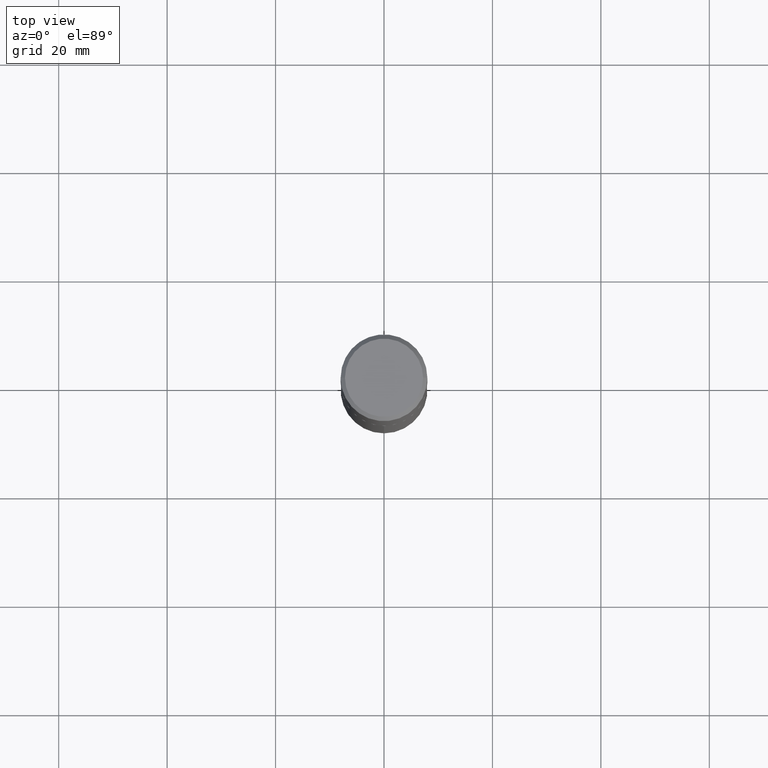
[diagram: clean part render]
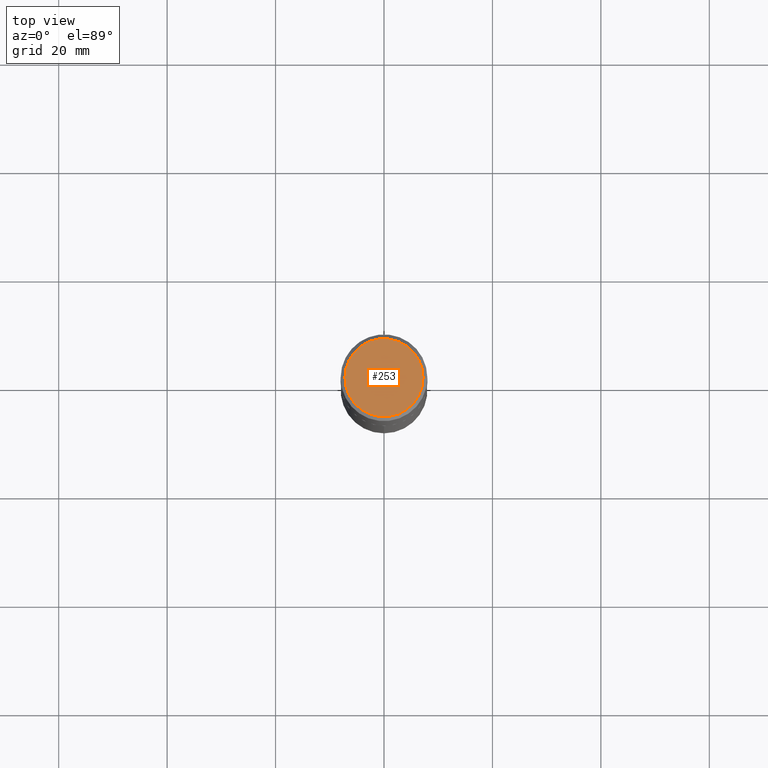
[diagram: same view with one face highlighted and labeled with its STEP entity id]
A machine part, top view. The second image highlights one B-rep face of the part: STEP entity #253.
In plain terms, the highlighted planar face has unit normal (0, -0, -1).
Its self-contained STEP definition (entity closure, byte-faithful):
#18 = CARTESIAN_POINT ( 'NONE',  ( -5.892338936576605744E-47, 8.412698369802303245E-33, 2.409492577322419881E-18 ) ) ;
#25 = AXIS2_PLACEMENT_3D ( 'NONE', #192, #307, #45 ) ;
#45 = DIRECTION ( 'NONE',  ( 1.000000000000000000, -6.982962677686267499E-15, 4.876309930827607477E-29 ) ) ;
#106 = DIRECTION ( 'NONE',  ( 1.000000000000000000, -6.982962677686267499E-15, 4.876309930827607477E-29 ) ) ;
#136 = CARTESIAN_POINT ( 'NONE',  ( 0.2837000000000000077, -2.108072959102388916E-15, 4.818985154659137865E-18 ) ) ;
#138 = DIRECTION ( 'NONE',  ( -2.445468806185136597E-29, 3.491481338843145583E-15, 1.000000000000000000 ) ) ;
#192 = CARTESIAN_POINT ( 'NONE',  ( -1.178467787315321149E-46, 1.682539673960460649E-32, 4.818985154644839761E-18 ) ) ;
#194 = CARTESIAN_POINT ( 'NONE',  ( -0.2837000000000000077, 2.035620907579017403E-15, 4.818985154630794339E-18 ) ) ;
#232 = VERTEX_POINT ( 'NONE', #136 ) ;
#250 = EDGE_CURVE ( 'NONE', #232, #300, #334, .T. ) ;
#253 = ADVANCED_FACE ( 'NONE', ( #342 ), #318, .F. ) ;
#258 = ORIENTED_EDGE ( 'NONE', *, *, #250, .T. ) ;
#259 = EDGE_LOOP ( 'NONE', ( #360, #258 ) ) ;
#271 = AXIS2_PLACEMENT_3D ( 'NONE', #376, #138, #106 ) ;
#288 = DIRECTION ( 'NONE',  ( 2.438088387897960049E-29, -3.491481338843145188E-15, -1.000000000000000000 ) ) ;
#300 = VERTEX_POINT ( 'NONE', #194 ) ;
#305 = EDGE_CURVE ( 'NONE', #300, #232, #347, .T. ) ;
#307 = DIRECTION ( 'NONE',  ( -2.445468806185136597E-29, 3.491481338843145583E-15, 1.000000000000000000 ) ) ;
#317 = DIRECTION ( 'NONE',  ( -1.000000000000000000, 6.982962677686265922E-15, -4.876176775795935793E-29 ) ) ;
#318 = PLANE ( 'NONE',  #339 ) ;
#334 = CIRCLE ( 'NONE', #25, 0.2837000000000000077 ) ;
#339 = AXIS2_PLACEMENT_3D ( 'NONE', #18, #288, #317 ) ;
#342 = FACE_OUTER_BOUND ( 'NONE', #259, .T. ) ;
#347 = CIRCLE ( 'NONE', #271, 0.2837000000000000077 ) ;
#360 = ORIENTED_EDGE ( 'NONE', *, *, #305, .T. ) ;
#376 = CARTESIAN_POINT ( 'NONE',  ( -1.178467787315321149E-46, 1.682539673960460649E-32, 4.818985154644839761E-18 ) ) ;